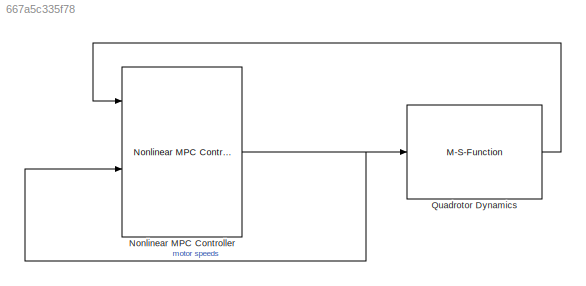
MODEL slx_667a5c335f78
KIND model
CONFIG AbsTol = auto
CONFIG EnableMultiTasking = off
CONFIG FixedStep = auto
CONFIG MaxStep = auto
CONFIG MinStep = auto
CONFIG RelTol = 1e-3
CONFIG SampleTimeConstraint = Unconstrained
CONFIG SolverName = VariableStepAuto
CONFIG StartTime = 0.0
CONFIG StopTime = 10.0
BLOCK [Reference] Nonlinear MPC Controller  REF=mpclib/Nonlinear MPC Controller  (lib defined in mdl_ae329e0e0455)
  Ports = [4, 1]
  SCDEnableBlockLinearizationSpecification = on
  SourceBlock = mpclib/Nonlinear MPC Controller
  SourceProductBaseCode = MP
  SourceType = NonlinearMPC
BLOCK [M-S-Function] Quadrotor Dynamics
  FunctionName = SlungQuadDynamics
  Ports = [1, 1]
NET Nonlinear MPC Controller:1 -> Nonlinear MPC Controller:3, Quadrotor Dynamics:1
LINE Quadrotor Dynamics:1 -> Nonlinear MPC Controller:1
note: NET lines group one-source signal fan-out (src -> all destinations, sorted); 1:1 wires keep LINE
